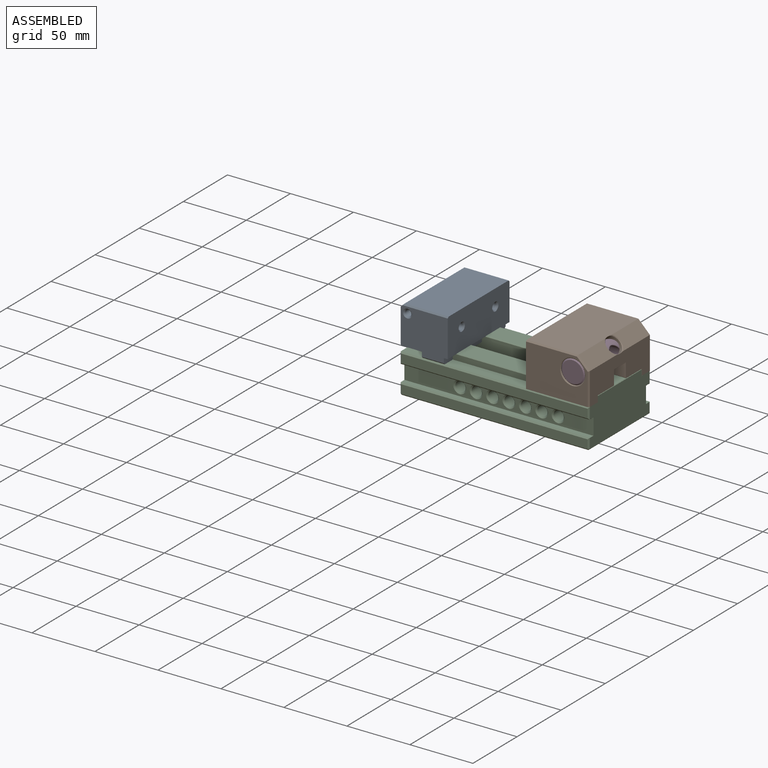
[diagram: assembled view]
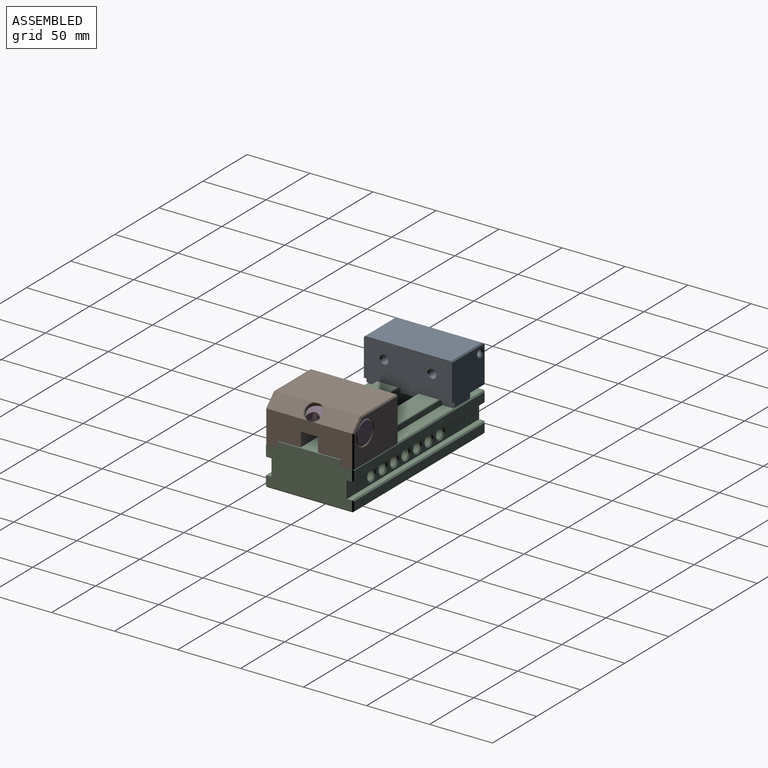
[diagram: assembled view, second angle]
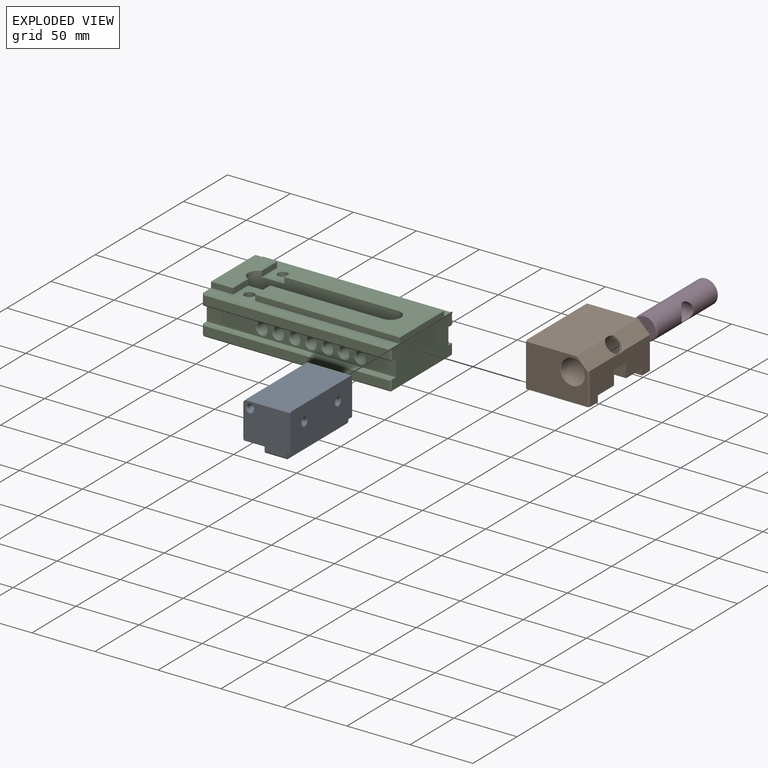
[diagram: exploded view]
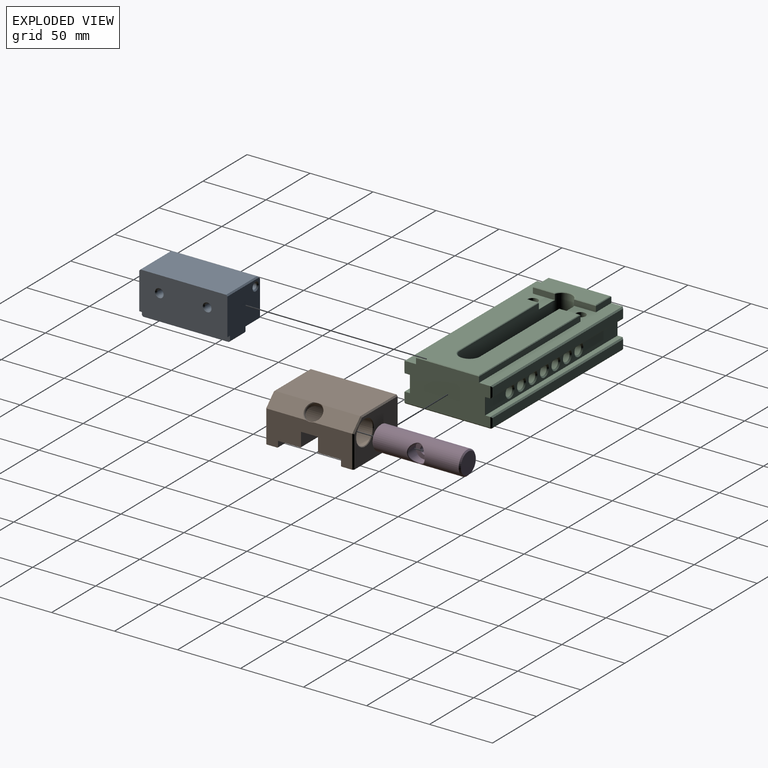
[diagram: exploded view, second angle]
ASSEMBLY  parts=4 mates=3
PART A: 42 faces, bbox 38x70x35 mm
  f0: plane 70x16.5mm, normal (0,0,-1), area 1155mm2, adj f1,f8,f9,f39
  f1: plane 70x4.8mm, normal (-1,0,0), area 335mm2, adj f0,f2,f8,f9,f40,f41
  f2: plane 68x17.5mm, normal (0,0,-1), area 1113mm2, adj f1,f3,f31,f32,f40,f41
  f3: plane 70x4.8mm, normal (1,0,0), area 335mm2, adj f2,f4,f8,f9,f40,f41
  f4: plane 70x3mm, normal (0,0,-1), area 210mm2, adj f3,f5,f8,f9
  f5: plane 70x30.2mm, normal (1,0,0), area 2036mm2, adj f4,f6,f8,f9,f11,f12,f33,f34
  f6: plane 68x35mm, normal (0,0,1), area 2380mm2, adj f5,f10,f11,f12
  f7: plane 68x26.2mm, normal (-1,0,0), area 1704.6mm2, adj f10,f13,f14,f37,f38,f39
  f8: plane 37x33mm, normal (0,1,0), area 1107.9mm2, adj f0,f1,f3,f4,f5,f10,f11,f13
  f9: plane 37x33mm, normal (0,-1,0), area 1107.9mm2, adj f0,f1,f3,f4,f5,f10,f12,f14
  f10: plane 70x3mm, normal (-0.71,0,0.71), area 294.2mm2, adj f6,f7,f8,f9,f11,f12,f13,f14
  f11: plane 36x1mm, normal (0,0.71,0.71), area 50.2mm2, adj f5,f6,f8,f10
  f12: plane 36x1mm, normal (0,-0.71,0.71), area 50.2mm2, adj f5,f6,f9,f10
  f13: plane 28.2x1mm, normal (-0.71,0.71,0), area 38.5mm2, adj f7,f8,f10,f39
  f14: plane 28.2x1mm, normal (-0.71,-0.71,0), area 38.5mm2, adj f7,f9,f10,f39
  f15: cylinder r=2.5mm len=14mm, axis (0,-1,0), area 219.9mm2, adj f16,f35
  f16: plane 5x5mm, normal (0,-1,0), area 19.6mm2, adj f15
  f17: cylinder r=2.5mm len=14mm, axis (0,-1,0), area 219.9mm2, adj f18,f36
  f18: plane 5x5mm, normal (0,1,0), area 19.6mm2, adj f17
  f19: cylinder r=2.5mm len=18.18mm, axis (0,0,-1), area 285.5mm2, adj f20,f32
  f20: plane 5x5mm, normal (0,0,-1), area 19.6mm2, adj f19
  f21: cylinder r=2.5mm len=18.18mm, axis (0,0,-1), area 285.5mm2, adj f22,f31
  f22: plane 5x5mm, normal (0,0,-1), area 19.6mm2, adj f21
  f23: cylinder r=2.5mm len=14mm, axis (1,0,0), area 219.9mm2, adj f24,f33
  f24: plane 5x5mm, normal (1,0,0), area 19.6mm2, adj f23
  f25: cylinder r=2.5mm len=14mm, axis (1,0,0), area 219.9mm2, adj f26,f34
  f26: plane 5x5mm, normal (1,0,0), area 19.6mm2, adj f25
  f27: cylinder r=2.5mm len=7mm, axis (1,0,0), area 110mm2, adj f28,f38
  f28: plane 5x5mm, normal (-1,0,0), area 19.6mm2, adj f27
  f29: cylinder r=2.5mm len=7mm, axis (1,0,0), area 110mm2, adj f30,f37
  f30: plane 5x5mm, normal (-1,0,0), area 19.6mm2, adj f29
  f31: cone r=3.5mm half-angle=45deg, axis (0,0,-1), area 26.7mm2, adj f2,f21
  f32: cone r=3.5mm half-angle=45deg, axis (0,0,-1), area 26.7mm2, adj f2,f19
  f33: cone r=2.5mm half-angle=45deg, axis (1,0,0), area 26.7mm2, adj f5,f23
  f34: cone r=2.5mm half-angle=45deg, axis (1,0,0), area 26.7mm2, adj f5,f25
  f35: cone r=2.5mm half-angle=45deg, axis (0,-1,0), area 26.7mm2, adj f9,f15
  f36: cone r=3.5mm half-angle=45deg, axis (0,1,0), area 26.7mm2, adj f8,f17
  f37: cone r=2.5mm half-angle=45deg, axis (-1,0,0), area 26.7mm2, adj f7,f29
  f38: cone r=2.5mm half-angle=45deg, axis (-1,0,0), area 26.7mm2, adj f7,f27
  f39: plane 70x1mm, normal (-0.71,0,-0.71), area 97.6mm2, adj f0,f7,f13,f14
  f40: plane 17.5x1mm, normal (0,0.71,-0.71), area 24.7mm2, adj f1,f2,f3,f8
  f41: plane 17.5x1mm, normal (0,-0.71,-0.71), area 24.7mm2, adj f1,f2,f3,f9
PART B: 38 faces, bbox 50.5x70x35.6 mm
  f0: plane 30.91x9.19mm, normal (0.71,0,0.71), area 362.7mm2, adj f3,f6,f23,f31
  f1: plane 30.91x9.19mm, normal (0.71,0,0.71), area 362.7mm2, adj f3,f6,f20,f31
  f2: plane 50x9.5mm, normal (0,0,-1), area 474.5mm2, adj f4,f6,f9,f19,f24
  f3: plane 68x40.81mm, normal (0,0,1), area 2772.4mm2, adj f0,f1,f4,f18,f21,f31
  f4: plane 70x35mm, normal (-1,0,0), area 1967.6mm2, adj f2,f3,f5,f8,f9,f10,f11,f13
  f5: plane 50x9.5mm, normal (0,0,-1), area 474.5mm2, adj f4,f6,f8,f22,f25
  f6: plane 68x25.81mm, normal (1,0,0), area 1348.4mm2, adj f0,f1,f2,f5,f10,f12,f13,f14
  f7: cylinder r=9.5mm len=69mm, axis (0,-1,0), area 3721.9mm2, adj f10,f11,f12,f13,f28,f29,f30
  f8: plane 49x34mm, normal (0,1,0), area 1314.8mm2, adj f4,f5,f21,f22,f23,f28
  f9: plane 49x34mm, normal (0,-1,0), area 1314.8mm2, adj f2,f4,f18,f19,f20,f29
  f10: plane 50x10.93mm, normal (0,-1,0), area 504mm2, adj f4,f6,f7,f11,f12,f26
  f11: plane 29.31x13.5mm, normal (0,0,-1), area 395.6mm2, adj f4,f7,f10,f13
  f12: plane 13.5x5.31mm, normal (0,0,-1), area 71.6mm2, adj f6,f7,f10,f13
  f13: plane 50x10.93mm, normal (0,1,0), area 504mm2, adj f4,f6,f7,f11,f12,f27
  f14: plane 50x4.5mm, normal (0,1,0), area 225mm2, adj f4,f6,f17,f24
  f15: plane 50x4.5mm, normal (0,-1,0), area 225mm2, adj f4,f6,f16,f25
  f16: plane 50x17.75mm, normal (0,0,-1), area 887.5mm2, adj f4,f6,f15,f26
  f17: plane 50x17.75mm, normal (0,0,-1), area 887.5mm2, adj f4,f6,f14,f27
  f18: plane 40.81x1mm, normal (0,-0.71,0.71), area 57.4mm2, adj f3,f4,f9,f20
  f19: plane 25.81x1mm, normal (0.71,-0.71,0), area 36.2mm2, adj f2,f6,f9,f20
  f20: plane 9.61x9.61mm, normal (0.5,-0.71,0.5), area 17.8mm2, adj f1,f9,f18,f19
  f21: plane 40.81x1mm, normal (0,0.71,0.71), area 57.4mm2, adj f3,f4,f8,f23
  f22: plane 25.81x1mm, normal (0.71,0.71,0), area 36.2mm2, adj f5,f6,f8,f23
  f23: plane 9.61x9.61mm, normal (0.5,0.71,0.5), area 17.8mm2, adj f0,f8,f21,f22
  f24: cylinder r=0.5mm len=50mm, axis (1,0,0), area 39.3mm2, adj f2,f4,f6,f14
  f25: cylinder r=0.5mm len=50mm, axis (-1,0,0), area 39.3mm2, adj f4,f5,f6,f15
  f26: cylinder r=0.5mm len=50mm, axis (-1,0,0), area 39.3mm2, adj f4,f6,f10,f16
  f27: cylinder r=0.5mm len=50mm, axis (-1,0,0), area 39.3mm2, adj f4,f6,f13,f17
  f28: cone r=10mm half-angle=45deg, axis (0,1,0), area 43.3mm2, adj f7,f8
  f29: cone r=9.5mm half-angle=45deg, axis (0,-1,0), area 43.3mm2, adj f7,f9
  f30: cylinder r=6.75mm len=13.5mm, axis (0.71,0,0.71), area 137mm2, adj f7,f31
  f31: cone r=6.75mm half-angle=45deg, axis (0.71,0,0.71), area 26.4mm2, adj f0,f1,f3,f6,f30
  f32: cylinder r=2.5mm len=14mm, axis (-1,0,0), area 219.9mm2, adj f33,f36
  f33: plane 5x5mm, normal (-1,0,0), area 19.6mm2, adj f32
  f34: cylinder r=2.5mm len=14mm, axis (-1,0,0), area 219.9mm2, adj f35,f37
  f35: plane 5x5mm, normal (-1,0,0), area 19.6mm2, adj f34
  f36: cone r=3.5mm half-angle=45deg, axis (-1,0,0), area 26.7mm2, adj f4,f32
  f37: cone r=3.5mm half-angle=45deg, axis (-1,0,0), area 26.7mm2, adj f4,f34
PART C: 125 faces, bbox 150x70x36 mm
  f0: plane 150x26.23mm, normal (0,0,1), area 1594.1mm2, adj f12,f13,f28,f29,f30,f31,f44,f79
  f1: plane 150x26.23mm, normal (0,0,1), area 1594.1mm2, adj f3,f4,f16,f17,f28,f29,f43,f74
  f2: plane 148x68mm, normal (0,0,-1), area 7568.5mm2, adj f53,f54,f55,f56,f57,f58,f60,f67
  f3: plane 17.47x4.73mm, normal (1,0,0), area 78.5mm2, adj f1,f16,f42,f86,f96
  f4: plane 17x4.7mm, normal (-1,0,0), area 76.5mm2, adj f1,f17,f39,f89,f95
  f5: cylinder r=4mm len=21mm, axis (0,-1,0), area 527.8mm2, adj f39,f111
  f6: cylinder r=4mm len=21mm, axis (0,-1,0), area 527.8mm2, adj f39,f112
  f7: cylinder r=4mm len=21mm, axis (0,-1,0), area 527.8mm2, adj f39,f113
  f8: cylinder r=4mm len=21mm, axis (0,-1,0), area 527.8mm2, adj f39,f114
  f9: cylinder r=4mm len=21mm, axis (0,-1,0), area 527.8mm2, adj f39,f115
  f10: cylinder r=4mm len=21mm, axis (0,-1,0), area 527.8mm2, adj f39,f116
  f11: cylinder r=4mm len=21mm, axis (0,-1,0), area 527.8mm2, adj f40,f41,f124
  f12: plane 17.5x4.5mm, normal (0,1,0), area 78.7mm2, adj f0,f28,f30,f81
  f13: plane 115x4.5mm, normal (0,1,0), area 517.5mm2, adj f0,f29,f31,f90
  f14: plane 49x16.5mm, normal (0,0,1), area 742.6mm2, adj f81,f82,f83,f84,f85,f86
  f15: plane 114x49mm, normal (0,0,1), area 3908.5mm2, adj f87,f88,f89,f90,f91,f92,f93,f94
  f16: plane 17.5x4.5mm, normal (0,-1,0), area 78.7mm2, adj f1,f3,f28,f84
  f17: plane 115x4.5mm, normal (0,-1,0), area 517.5mm2, adj f1,f4,f29,f87
  f18: plane 149.6x4mm, normal (0,0,-1), area 598.4mm2, adj f27,f78,f99,f108
  f19: plane 148x7mm, normal (0,1,0), area 1036mm2, adj f77,f78,f79,f80
  f20: plane 148x7mm, normal (0,-1,0), area 1036mm2, adj f73,f74,f75,f76
  f21: plane 149.6x4mm, normal (0,0,-1), area 598.4mm2, adj f22,f75,f104,f107
  f22: plane 149.6x13mm, normal (0,-1,0), area 1395mm2, adj f21,f23,f103,f106,f111,f112,f113,f114
  f23: plane 149.6x4mm, normal (0,0,1), area 598.4mm2, adj f22,f62,f102,f105
  f24: plane 148x7mm, normal (0,-1,0), area 1036mm2, adj f59,f62,f66,f67
  f25: plane 148x7mm, normal (0,1,0), area 1036mm2, adj f61,f65,f68,f69
  f26: plane 149.6x4mm, normal (0,0,1), area 598.4mm2, adj f27,f65,f101,f110
  f27: plane 149.6x13mm, normal (0,1,0), area 1395mm2, adj f18,f26,f100,f109,f118,f119,f120,f121
  f28: plane 68x34.5mm, normal (-1,0,0), area 2152.4mm2, adj f0,f1,f12,f16,f66,f69,f72,f76
  f29: plane 68x34.5mm, normal (1,0,0), area 2152.4mm2, adj f0,f1,f13,f17,f59,f60,f61,f73
  f30: plane 17.47x4.73mm, normal (1,0,0), area 78.5mm2, adj f0,f12,f42,f83,f98
  f31: plane 17x4.7mm, normal (-1,0,0), area 76.5mm2, adj f0,f13,f41,f92,f97
  f32: cylinder r=4mm len=21mm, axis (0,-1,0), area 527.8mm2, adj f41,f118
  f33: cylinder r=4mm len=21mm, axis (0,-1,0), area 527.8mm2, adj f41,f119
  f34: cylinder r=4mm len=21mm, axis (0,-1,0), area 527.8mm2, adj f41,f120
  f35: cylinder r=4mm len=21mm, axis (0,-1,0), area 527.8mm2, adj f41,f121
  f36: cylinder r=4mm len=21mm, axis (0,-1,0), area 527.8mm2, adj f41,f122
  f37: cylinder r=4mm len=21mm, axis (0,-1,0), area 527.8mm2, adj f41,f123
  f38: cylinder r=4mm len=21mm, axis (0,-1,0), area 527.8mm2, adj f39,f40,f117
  f39: plane 104.74x34.5mm, normal (0,1,0), area 3196.2mm2, adj f4,f5,f6,f7,f8,f9,f10,f38
  f40: cylinder r=8mm len=34.5mm, axis (0,0,-1), area 867.2mm2, adj f11,f38,f39,f41,f51,f55
  f41: plane 104.76x34.5mm, normal (0,-1,0), area 3196.7mm2, adj f11,f31,f32,f33,f34,f35,f36,f37
  f42: cylinder r=8mm len=34.5mm, axis (0,0,-1), area 841.9mm2, adj f3,f30,f39,f41,f49,f58,f96,f98
  f43: cylinder r=4mm len=23mm, axis (0,0,-1), area 578.1mm2, adj f1,f48
  f44: cylinder r=4mm len=23mm, axis (0,0,-1), area 578.1mm2, adj f0,f46
  f45: cylinder r=6.5mm len=13mm, axis (0,0,-1), area 285.9mm2, adj f46,f53
  f46: plane 13x13mm, normal (0,0,-1), area 82.5mm2, adj f44,f45
  f47: cylinder r=6.5mm len=13mm, axis (0,0,-1), area 285.9mm2, adj f48,f54
  f48: plane 13x13mm, normal (0,0,-1), area 82.5mm2, adj f43,f47
  f49: cone r=8mm half-angle=45deg, axis (0,0,1), area 10mm2, adj f42,f83,f85,f86
  f50: plane 89.88x0.35mm, normal (0,-0.71,0.71), area 44.9mm2, adj f41,f51,f92,f94
  f51: cone r=8mm half-angle=45deg, axis (0,0,1), area 13mm2, adj f40,f50,f52,f93
  f52: plane 89.86x0.35mm, normal (0,0.71,0.71), area 44.8mm2, adj f39,f51,f89,f91
  f53: cone r=7.5mm half-angle=45deg, axis (0,0,-1), area 62.2mm2, adj f2,f45
  f54: cone r=7.5mm half-angle=45deg, axis (0,0,-1), area 62.2mm2, adj f2,f47
  f55: cone r=9mm half-angle=45deg, axis (0,0,-1), area 38.1mm2, adj f2,f40,f56,f57
  f56: plane 104.74x1mm, normal (0,0.71,-0.71), area 148.1mm2, adj f2,f39,f55,f58
  f57: plane 104.76x1mm, normal (0,-0.71,-0.71), area 148.1mm2, adj f2,f41,f55,f58
  f58: cone r=8mm half-angle=45deg, axis (0,0,-1), area 37.8mm2, adj f2,f42,f56,f57
  f59: plane 7.97x1.03mm, normal (0.71,-0.71,0), area 10.6mm2, adj f24,f29,f62,f63,f102
  f60: plane 68x1mm, normal (0.71,0,-0.71), area 96.2mm2, adj f2,f29,f63,f64
  f61: plane 7.97x1.03mm, normal (0.71,0.71,0), area 10.6mm2, adj f25,f29,f64,f65,f101
  f62: plane 149.91x1.03mm, normal (0,-0.71,0.71), area 210.7mm2, adj f23,f24,f59,f66,f102,f105
  f63: plane 1x1mm, normal (0.58,-0.58,-0.58), area 0.9mm2, adj f59,f60,f67
  f64: plane 1x1mm, normal (0.58,0.58,-0.58), area 0.9mm2, adj f60,f61,f68
  f65: plane 149.91x1.03mm, normal (0,0.71,0.71), area 210.7mm2, adj f25,f26,f61,f69,f101,f110
  f66: plane 7.97x1.03mm, normal (-0.71,-0.71,0), area 10.6mm2, adj f24,f28,f62,f70,f105
  f67: plane 148x1mm, normal (0,-0.71,-0.71), area 209.3mm2, adj f2,f24,f63,f70
  f68: plane 148x1mm, normal (0,0.71,-0.71), area 209.3mm2, adj f2,f25,f64,f71
  f69: plane 7.97x1.03mm, normal (-0.71,0.71,0), area 10.6mm2, adj f25,f28,f65,f71,f110
  f70: plane 1x1mm, normal (-0.58,-0.58,-0.58), area 0.9mm2, adj f66,f67,f72
  f71: plane 1x1mm, normal (-0.58,0.58,-0.58), area 0.9mm2, adj f68,f69,f72
  f72: plane 68x1mm, normal (-0.71,0,-0.71), area 96.2mm2, adj f2,f28,f70,f71
  f73: plane 8.97x1.03mm, normal (0.71,-0.71,0), area 11.3mm2, adj f20,f29,f74,f75,f104
  f74: plane 150x1mm, normal (0,-0.71,0.71), area 210.7mm2, adj f1,f20,f73,f76
  f75: plane 149.91x1.03mm, normal (0,-0.71,-0.71), area 210.7mm2, adj f20,f21,f73,f76,f104,f107
  f76: plane 8.97x1.03mm, normal (-0.71,-0.71,0), area 11.3mm2, adj f20,f28,f74,f75,f107
  f77: plane 8.97x1.03mm, normal (0.71,0.71,0), area 11.3mm2, adj f19,f29,f78,f79,f99
  f78: plane 149.91x1.03mm, normal (0,0.71,-0.71), area 210.7mm2, adj f18,f19,f77,f80,f99,f108
  f79: plane 150x1mm, normal (0,0.71,0.71), area 210.7mm2, adj f0,f19,f77,f80
  f80: plane 8.97x1.03mm, normal (-0.71,0.71,0), area 11.3mm2, adj f19,f28,f78,f79,f108
  f81: plane 17.5x0.5mm, normal (0,0.71,0.71), area 12mm2, adj f12,f14,f82,f83
  f82: plane 50x0.5mm, normal (-0.71,0,0.71), area 35mm2, adj f14,f28,f81,f84
  f83: plane 17.45x0.5mm, normal (0.71,0,0.71), area 12mm2, adj f14,f30,f49,f81,f85
  f84: plane 17.5x0.5mm, normal (0,-0.71,0.71), area 12mm2, adj f14,f16,f82,f86
  f85: cone r=8.71mm half-angle=67.5deg, axis (0,0,1), area 7.9mm2, adj f14,f49,f83,f86
  f86: plane 17.45x0.5mm, normal (0.71,0,0.71), area 12mm2, adj f3,f14,f49,f84,f85
  f87: plane 115x0.5mm, normal (0,-0.71,0.71), area 81mm2, adj f15,f17,f88,f89
  f88: plane 50x0.5mm, normal (0.71,0,0.71), area 35mm2, adj f15,f29,f87,f90
  f89: plane 17x0.5mm, normal (-0.71,0,0.71), area 11.6mm2, adj f4,f15,f52,f87,f91
  f90: plane 115x0.5mm, normal (0,0.71,0.71), area 81mm2, adj f13,f15,f88,f92
  f91: plane 89.51x0.35mm, normal (0,0.38,0.92), area 34.2mm2, adj f15,f52,f89,f93
  f92: plane 17x0.5mm, normal (-0.71,0,0.71), area 11.6mm2, adj f15,f31,f50,f90,f94
  f93: cone r=8.71mm half-angle=67.5deg, axis (0,0,1), area 10.4mm2, adj f15,f51,f91,f94
  f94: plane 89.53x0.35mm, normal (0,-0.38,0.92), area 34.2mm2, adj f15,f50,f92,f93
  f95: cylinder r=0.2mm len=14.88mm, axis (-1,0,0), area 4.7mm2, adj f1,f4,f39,f96
  f96: torus R=8.2mm, axis (0,0,1), area 0.8mm2, adj f1,f3,f42,f95
  f97: cylinder r=0.2mm len=14.88mm, axis (1,0,0), area 4.7mm2, adj f0,f31,f41,f98
  f98: torus R=8.2mm, axis (0,0,1), area 0.8mm2, adj f0,f30,f42,f97
  f99: cylinder r=0.2mm len=4.26mm, axis (0,1,0), area 1.3mm2, adj f18,f29,f77,f78,f100
  f100: cylinder r=0.2mm len=13.4mm, axis (0,0,1), area 4.1mm2, adj f27,f29,f99,f101
  f101: cylinder r=0.2mm len=4.26mm, axis (0,-1,0), area 1.3mm2, adj f26,f29,f61,f65,f100
  f102: cylinder r=0.2mm len=4.26mm, axis (0,-1,0), area 1.3mm2, adj f23,f29,f59,f62,f103
  f103: cylinder r=0.2mm len=13.4mm, axis (0,0,-1), area 4.1mm2, adj f22,f29,f102,f104
  f104: cylinder r=0.2mm len=4.26mm, axis (0,1,0), area 1.3mm2, adj f21,f29,f73,f75,f103
  f105: cylinder r=0.2mm len=4.26mm, axis (0,1,0), area 1.3mm2, adj f23,f28,f62,f66,f106
  f106: cylinder r=0.2mm len=13.4mm, axis (0,0,1), area 4.1mm2, adj f22,f28,f105,f107
  f107: cylinder r=0.2mm len=4.26mm, axis (0,-1,0), area 1.3mm2, adj f21,f28,f75,f76,f106
  f108: cylinder r=0.2mm len=4.26mm, axis (0,-1,0), area 1.3mm2, adj f18,f28,f78,f80,f109
  f109: cylinder r=0.2mm len=13.4mm, axis (0,0,-1), area 4.1mm2, adj f27,f28,f108,f110
  f110: cylinder r=0.2mm len=4.26mm, axis (0,1,0), area 1.3mm2, adj f26,f28,f65,f69,f109
  f111: cone r=4mm half-angle=45deg, axis (0,-1,0), area 40mm2, adj f5,f22
  f112: cone r=4mm half-angle=45deg, axis (0,-1,0), area 40mm2, adj f6,f22
  f113: cone r=4mm half-angle=45deg, axis (0,-1,0), area 40mm2, adj f7,f22
  f114: cone r=4mm half-angle=45deg, axis (0,-1,0), area 40mm2, adj f8,f22
  f115: cone r=4mm half-angle=45deg, axis (0,-1,0), area 40mm2, adj f9,f22
  f116: cone r=4mm half-angle=45deg, axis (0,-1,0), area 40mm2, adj f10,f22
  f117: cone r=4mm half-angle=45deg, axis (0,-1,0), area 40mm2, adj f22,f38
  f118: cone r=5mm half-angle=45deg, axis (0,1,0), area 40mm2, adj f27,f32
  f119: cone r=5mm half-angle=45deg, axis (0,1,0), area 40mm2, adj f27,f33
  f120: cone r=5mm half-angle=45deg, axis (0,1,0), area 40mm2, adj f27,f34
  f121: cone r=5mm half-angle=45deg, axis (0,1,0), area 40mm2, adj f27,f35
  f122: cone r=5mm half-angle=45deg, axis (0,1,0), area 40mm2, adj f27,f36
  f123: cone r=5mm half-angle=45deg, axis (0,1,0), area 40mm2, adj f27,f37
  f124: cone r=5mm half-angle=45deg, axis (0,1,0), area 40mm2, adj f11,f27
PART D: 10 faces, bbox 70x19x19 mm
  f0: cylinder r=9.5mm len=68mm, axis (1,0,0), area 3817.4mm2, adj f3,f4,f8,f9
  f1: plane 17x17mm, normal (1,0,0), area 227mm2, adj f3
  f2: plane 17x17mm, normal (-1,0,0), area 227mm2, adj f4
  f3: cone r=8.5mm half-angle=45deg, axis (-1,0,0), area 80mm2, adj f0,f1
  f4: cone r=9.5mm half-angle=45deg, axis (1,0,0), area 80mm2, adj f0,f2
  f5: cylinder r=6.75mm len=13.5mm, axis (0,0,-1), area 309mm2, adj f6,f9
  f6: plane 13.5x13.5mm, normal (0,0,1), area 110mm2, adj f5,f7
  f7: cylinder r=3.25mm len=9mm, axis (0,0,1), area 175.5mm2, adj f6,f8
  f8: bspline ~7.93x7.51mm, area 19.7mm2, adj f0,f7
  f9: bspline ~15.31x14.51mm, area 47.1mm2, adj f0,f5
PLACE A t=(-70.84,-41.75,41.35)mm
PLACE B t=(-8.84,-41.5,32.17)mm
PLACE C t=(41.16,-6.75,1.17)mm fixed
PLACE D rot(axis=(-0.58,0.58,-0.58),120deg) t=(28.16,-41.5,54.17)mm
MATE fastened A.f21 <-> C.f43  axis (0,0,-1) through (-82.59,-25.75,32.17)mm
MATE slider C.f29 <-> B.f6  axis (1,0,0) through (41.16,-36.25,32.17)mm
MATE fastened D.f0 <-> B.f7  axis (0,-1,0) through (28.16,-6.5,54.17)mm
